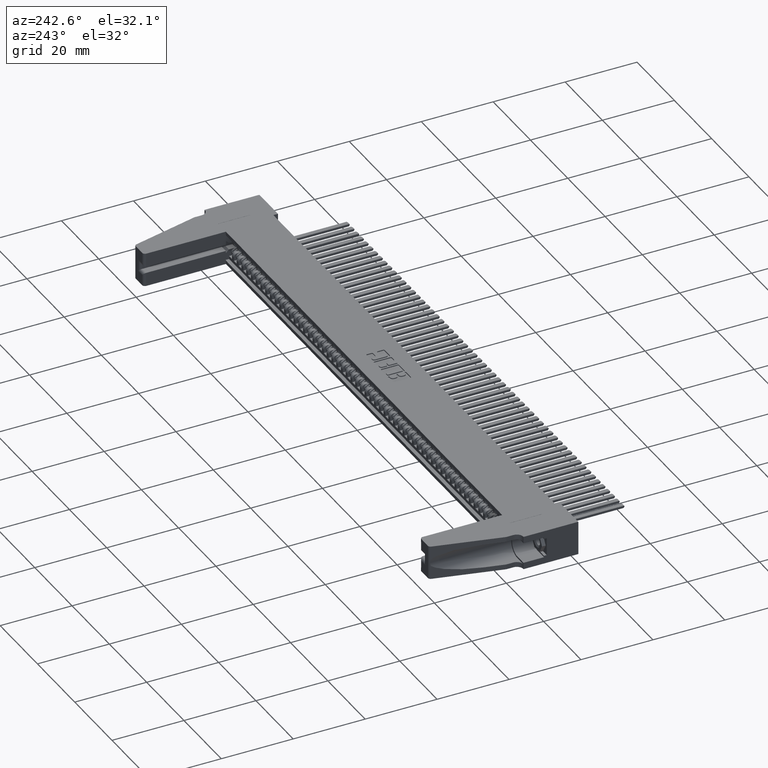
[diagram: clean part render]
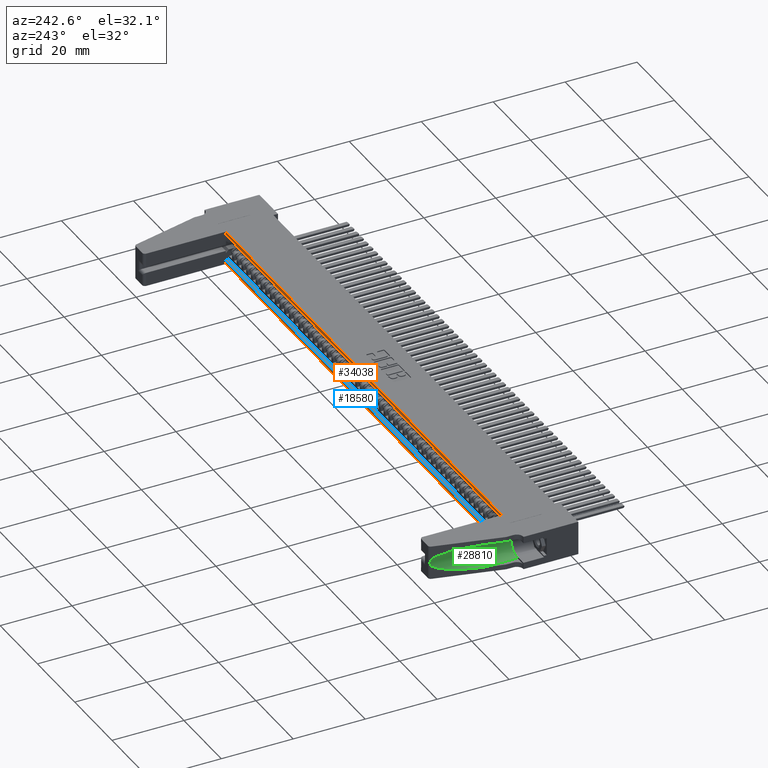
[diagram: same view with three faces highlighted in distinct colors, each labeled with its STEP entity id]
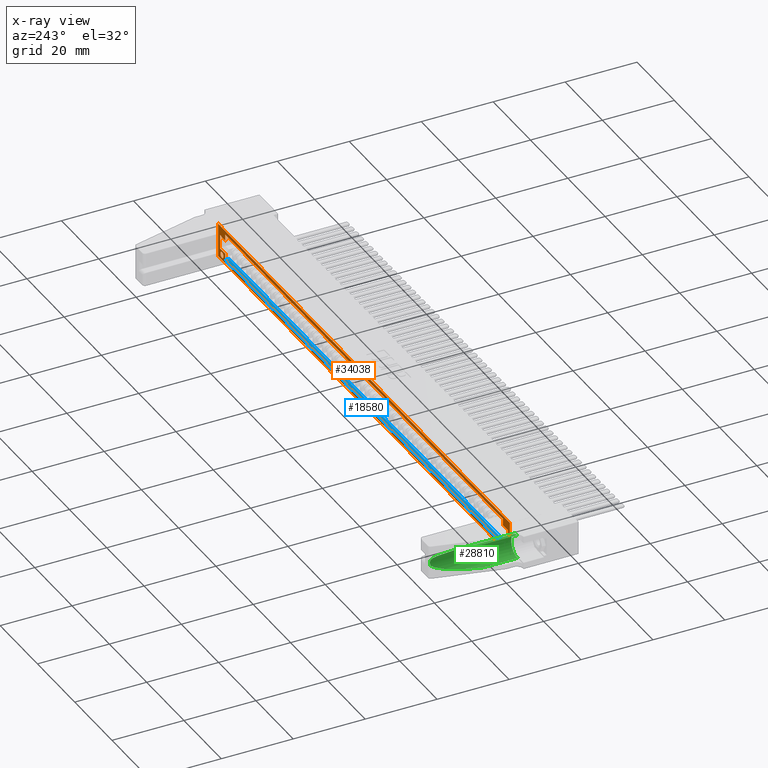
[diagram: x-ray of the same camera — body ghosted, the three highlighted faces saturated]
A machine part, auxiliary view with three faces highlighted in distinct colors.
The next image is the same camera in x-ray (body ghosted, the three faces saturated) — at least one of them is partly hidden behind the body in this view.
Their STEP definitions:

[orange] entity #34038 — the highlighted planar face has unit normal (0, -1, 0).
#142 = DIRECTION ( 'NONE',  ( 0.0000000000000000000, 0.0000000000000000000, -1.000000000000000000 ) ) ;
#204 = CARTESIAN_POINT ( 'NONE',  ( 0.4375000000000010000, 0.5999999999999999800, -0.3310000000000007400 ) ) ;
#339 = EDGE_CURVE ( 'NONE', #10562, #4390, #20150, .T. ) ;
#388 = AXIS2_PLACEMENT_3D ( 'NONE', #8980, #29731, #22627 ) ;
#449 = VECTOR ( 'NONE', #17428, 39.37007874015748100 ) ;
#696 = EDGE_CURVE ( 'NONE', #33969, #15480, #30733, .T. ) ;
#751 = AXIS2_PLACEMENT_3D ( 'NONE', #30401, #16495, #43931 ) ;
#795 = CARTESIAN_POINT ( 'NONE',  ( 0.0000000000000000000, 0.5999999999999999800, -0.2610000000000007300 ) ) ;
#796 = EDGE_CURVE ( 'NONE', #11932, #32181, #27513, .T. ) ;
#820 = VERTEX_POINT ( 'NONE', #34261 ) ;
#943 = DIRECTION ( 'NONE',  ( -1.000000000000000000, -0.0000000000000000000, -1.165464161119566900E-017 ) ) ;
#1179 = CARTESIAN_POINT ( 'NONE',  ( 6.297499999999997700, 0.5999999999999999800, -0.03900000000000066600 ) ) ;
#1569 = LINE ( 'NONE', #23654, #26580 ) ;
#1698 = CARTESIAN_POINT ( 'NONE',  ( 0.4374999999999998900, 0.5999999999999999800, -0.2610000000000007300 ) ) ;
#1959 = FACE_BOUND ( 'NONE', #4902, .T. ) ;
#2023 = CARTESIAN_POINT ( 'NONE',  ( 0.0000000000000000000, 0.5999999999999999800, -0.2610000000000007300 ) ) ;
#2320 = EDGE_CURVE ( 'NONE', #12634, #4390, #14070, .T. ) ;
#2660 = LINE ( 'NONE', #31212, #31943 ) ;
#2753 = LINE ( 'NONE', #26936, #30968 ) ;
#3137 = CARTESIAN_POINT ( 'NONE',  ( 0.3784999999999999500, 0.5999999999999999800, -0.2820000000000000300 ) ) ;
#3429 = DIRECTION ( 'NONE',  ( 1.000000000000000000, 0.0000000000000000000, 1.165464161119566900E-017 ) ) ;
#3480 = VERTEX_POINT ( 'NONE', #36873 ) ;
#3645 = LINE ( 'NONE', #5196, #13775 ) ;
#3853 = CARTESIAN_POINT ( 'NONE',  ( 6.367500000000000600, 0.5999999999999999800, -0.2809999999999996900 ) ) ;
#4003 = CARTESIAN_POINT ( 'NONE',  ( 0.3274999999999991800, 0.5999999999999999800, -0.3700000000000001600 ) ) ;
#4018 = CIRCLE ( 'NONE', #751, 0.03200000000000033400 ) ;
#4115 = FACE_BOUND ( 'NONE', #8216, .T. ) ;
#4135 = CARTESIAN_POINT ( 'NONE',  ( 6.297500000000001200, 0.5999999999999999800, -0.2974999999999998800 ) ) ;
#4390 = VERTEX_POINT ( 'NONE', #31475 ) ;
#4397 = EDGE_CURVE ( 'NONE', #10954, #15480, #37762, .T. ) ;
#4433 = CARTESIAN_POINT ( 'NONE',  ( 0.0000000000000000000, 0.5999999999999999800, 0.0000000000000000000 ) ) ;
#4637 = CARTESIAN_POINT ( 'NONE',  ( 0.2874999999999999800, 0.5999999999999999800, 0.0000000000000000000 ) ) ;
#4805 = LINE ( 'NONE', #42561, #35125 ) ;
#4902 = EDGE_LOOP ( 'NONE', ( #41038, #37666, #33927, #31076 ) ) ;
#5099 = FACE_OUTER_BOUND ( 'NONE', #41823, .T. ) ;
#5196 = CARTESIAN_POINT ( 'NONE',  ( 0.3564999999999999300, 0.5999999999999999800, -0.2820000000000000800 ) ) ;
#5314 = VERTEX_POINT ( 'NONE', #3137 ) ;
#5499 = CARTESIAN_POINT ( 'NONE',  ( 0.3564999999999999800, 0.5999999999999999800, -0.3440000000000000800 ) ) ;
#5963 = CARTESIAN_POINT ( 'NONE',  ( 6.297500000000001200, 0.5999999999999999800, -0.2610000000000007300 ) ) ;
#6494 = CARTESIAN_POINT ( 'NONE',  ( 0.3564999999999999800, 0.5999999999999999800, -0.3440000000000000800 ) ) ;
#6801 = EDGE_CURVE ( 'NONE', #34964, #10954, #8310, .T. ) ;
#6939 = VECTOR ( 'NONE', #28039, 39.37007874015748100 ) ;
#7117 = VECTOR ( 'NONE', #9385, 39.37007874015748100 ) ;
#7132 = ORIENTED_EDGE ( 'NONE', *, *, #19786, .F. ) ;
#7340 = VECTOR ( 'NONE', #26969, 39.37007874015748100 ) ;
#7867 = ORIENTED_EDGE ( 'NONE', *, *, #21352, .F. ) ;
#8216 = EDGE_LOOP ( 'NONE', ( #21910, #21287 ) ) ;
#8310 = LINE ( 'NONE', #4003, #10948 ) ;
#8414 = VECTOR ( 'NONE', #11365, 39.37007874015748100 ) ;
#8791 = EDGE_CURVE ( 'NONE', #37939, #820, #15058, .T. ) ;
#8911 = DIRECTION ( 'NONE',  ( 1.000000000000000000, 0.0000000000000000000, 0.0000000000000000000 ) ) ;
#8980 = CARTESIAN_POINT ( 'NONE',  ( 0.0000000000000000000, 0.5999999999999999800, -0.3700000000000001600 ) ) ;
#9082 = ORIENTED_EDGE ( 'NONE', *, *, #8791, .T. ) ;
#9122 = CARTESIAN_POINT ( 'NONE',  ( 0.4375000000000010000, 0.5999999999999999800, -0.3310000000000007400 ) ) ;
#9385 = DIRECTION ( 'NONE',  ( 0.0000000000000000000, 0.0000000000000000000, 1.000000000000000000 ) ) ;
#10562 = VERTEX_POINT ( 'NONE', #4637 ) ;
#10596 = DIRECTION ( 'NONE',  ( 0.0000000000000000000, 1.000000000000000000, 0.0000000000000000000 ) ) ;
#10948 = VECTOR ( 'NONE', #27615, 39.37007874015748100 ) ;
#10954 = VERTEX_POINT ( 'NONE', #36997 ) ;
#11365 = DIRECTION ( 'NONE',  ( 0.0000000000000000000, 0.0000000000000000000, 1.000000000000000000 ) ) ;
#11400 = CARTESIAN_POINT ( 'NONE',  ( 6.407500000000000600, 0.5999999999999999800, -0.2610000000000007300 ) ) ;
#11932 = VERTEX_POINT ( 'NONE', #31989 ) ;
#12051 = VERTEX_POINT ( 'NONE', #5963 ) ;
#12150 = LINE ( 'NONE', #38202, #38195 ) ;
#12400 = VERTEX_POINT ( 'NONE', #34897 ) ;
#12634 = VERTEX_POINT ( 'NONE', #36648 ) ;
#13579 = DIRECTION ( 'NONE',  ( 0.0000000000000000000, 0.0000000000000000000, 1.000000000000000000 ) ) ;
#13775 = VECTOR ( 'NONE', #28961, 39.37007874015748100 ) ;
#13812 = LINE ( 'NONE', #13989, #449 ) ;
#13989 = CARTESIAN_POINT ( 'NONE',  ( 0.0000000000000000000, 0.5999999999999999800, -0.3700000000000001600 ) ) ;
#14070 = LINE ( 'NONE', #21988, #15149 ) ;
#14479 = EDGE_CURVE ( 'NONE', #12051, #38358, #25243, .T. ) ;
#14484 = AXIS2_PLACEMENT_3D ( 'NONE', #15777, #16221, #23027 ) ;
#14655 = EDGE_CURVE ( 'NONE', #26040, #41393, #4018, .T. ) ;
#14945 = EDGE_CURVE ( 'NONE', #5314, #11932, #20974, .T. ) ;
#15058 = LINE ( 'NONE', #29142, #30985 ) ;
#15110 = CARTESIAN_POINT ( 'NONE',  ( 0.3274999999999991800, 0.5999999999999999800, -0.1089999999999994400 ) ) ;
#15149 = VECTOR ( 'NONE', #26743, 39.37007874015748100 ) ;
#15372 = CIRCLE ( 'NONE', #18703, 0.03200000000000033400 ) ;
#15480 = VERTEX_POINT ( 'NONE', #1698 ) ;
#15777 = CARTESIAN_POINT ( 'NONE',  ( 0.3784999999999999500, 0.5999999999999999800, -0.3130000000000000600 ) ) ;
#16069 = ORIENTED_EDGE ( 'NONE', *, *, #6801, .T. ) ;
#16221 = DIRECTION ( 'NONE',  ( 0.0000000000000000000, 1.000000000000000000, 0.0000000000000000000 ) ) ;
#16429 = ORIENTED_EDGE ( 'NONE', *, *, #4397, .T. ) ;
#16495 = DIRECTION ( 'NONE',  ( 0.0000000000000000000, 1.000000000000000000, 0.0000000000000000000 ) ) ;
#17268 = VERTEX_POINT ( 'NONE', #26236 ) ;
#17428 = DIRECTION ( 'NONE',  ( -1.000000000000000000, -0.0000000000000000000, -2.028097990842066200E-017 ) ) ;
#17697 = CIRCLE ( 'NONE', #22819, 0.03099999999999998900 ) ;
#17984 = ORIENTED_EDGE ( 'NONE', *, *, #41077, .F. ) ;
#18289 = EDGE_CURVE ( 'NONE', #32181, #12400, #17697, .T. ) ;
#18703 = AXIS2_PLACEMENT_3D ( 'NONE', #30347, #10596, #13579 ) ;
#19681 = VECTOR ( 'NONE', #34736, 39.37007874015748100 ) ;
#19786 = EDGE_CURVE ( 'NONE', #3480, #22151, #1569, .T. ) ;
#19988 = EDGE_CURVE ( 'NONE', #12634, #17268, #13812, .T. ) ;
#20150 = LINE ( 'NONE', #4433, #23355 ) ;
#20223 = EDGE_CURVE ( 'NONE', #12400, #5314, #3645, .T. ) ;
#20974 = CIRCLE ( 'NONE', #14484, 0.03100000000000002400 ) ;
#21258 = DIRECTION ( 'NONE',  ( 0.0000000000000000000, 0.0000000000000000000, 1.000000000000000000 ) ) ;
#21287 = ORIENTED_EDGE ( 'NONE', *, *, #44058, .F. ) ;
#21299 = EDGE_LOOP ( 'NONE', ( #41319, #7867, #32098, #22384, #37637, #9082, #25187, #7132, #17984, #40250, #16069, #16429 ) ) ;
#21352 = EDGE_CURVE ( 'NONE', #43606, #33969, #40739, .T. ) ;
#21910 = ORIENTED_EDGE ( 'NONE', *, *, #14655, .F. ) ;
#21988 = CARTESIAN_POINT ( 'NONE',  ( 6.447499999999999800, 0.5999999999999999800, 0.0000000000000000000 ) ) ;
#22151 = VERTEX_POINT ( 'NONE', #1179 ) ;
#22159 = DIRECTION ( 'NONE',  ( 0.0000000000000000000, 0.0000000000000000000, 1.000000000000000000 ) ) ;
#22384 = ORIENTED_EDGE ( 'NONE', *, *, #14479, .T. ) ;
#22627 = DIRECTION ( 'NONE',  ( 0.0000000000000000000, -0.0000000000000000000, -1.000000000000000000 ) ) ;
#22681 = EDGE_CURVE ( 'NONE', #34117, #34964, #2660, .T. ) ;
#22689 = VECTOR ( 'NONE', #943, 39.37007874015748100 ) ;
#22819 = AXIS2_PLACEMENT_3D ( 'NONE', #25842, #36104, #22159 ) ;
#23027 = DIRECTION ( 'NONE',  ( 0.0000000000000000000, 0.0000000000000000000, 1.000000000000000000 ) ) ;
#23355 = VECTOR ( 'NONE', #35055, 39.37007874015748100 ) ;
#23654 = CARTESIAN_POINT ( 'NONE',  ( 0.4375000000000010000, 0.5999999999999999800, -0.03900000000000072900 ) ) ;
#24731 = ORIENTED_EDGE ( 'NONE', *, *, #19988, .T. ) ;
#25187 = ORIENTED_EDGE ( 'NONE', *, *, #32187, .T. ) ;
#25243 = LINE ( 'NONE', #2023, #30631 ) ;
#25842 = CARTESIAN_POINT ( 'NONE',  ( 0.3564999999999999800, 0.5999999999999999800, -0.3130000000000000600 ) ) ;
#26040 = VERTEX_POINT ( 'NONE', #3853 ) ;
#26060 = LINE ( 'NONE', #4135, #19681 ) ;
#26236 = CARTESIAN_POINT ( 'NONE',  ( 0.2874999999999999800, 0.5999999999999999800, -0.3700000000000001600 ) ) ;
#26237 = LINE ( 'NONE', #26268, #7117 ) ;
#26268 = CARTESIAN_POINT ( 'NONE',  ( 6.297500000000001200, 0.5999999999999999800, -0.2974999999999998800 ) ) ;
#26580 = VECTOR ( 'NONE', #3429, 39.37007874015748100 ) ;
#26743 = DIRECTION ( 'NONE',  ( -2.953349182339752700E-015, -0.0000000000000000000, 1.000000000000000000 ) ) ;
#26936 = CARTESIAN_POINT ( 'NONE',  ( 0.2874999999999999800, 0.5999999999999999800, 0.0000000000000000000 ) ) ;
#26969 = DIRECTION ( 'NONE',  ( -1.000000000000000000, -0.0000000000000000000, -0.0000000000000000000 ) ) ;
#27513 = LINE ( 'NONE', #6494, #7340 ) ;
#27615 = DIRECTION ( 'NONE',  ( 0.0000000000000000000, 0.0000000000000000000, -1.000000000000000000 ) ) ;
#27729 = EDGE_CURVE ( 'NONE', #10562, #17268, #2753, .T. ) ;
#28039 = DIRECTION ( 'NONE',  ( 1.000000000000000000, 0.0000000000000000000, 0.0000000000000000000 ) ) ;
#28961 = DIRECTION ( 'NONE',  ( 1.000000000000000000, 0.0000000000000000000, 3.104372720073026700E-015 ) ) ;
#29142 = CARTESIAN_POINT ( 'NONE',  ( 0.0000000000000000000, 0.5999999999999999800, -0.1089999999999994400 ) ) ;
#29289 = PLANE ( 'NONE',  #388 ) ;
#29731 = DIRECTION ( 'NONE',  ( 0.0000000000000000000, -1.000000000000000000, 0.0000000000000000000 ) ) ;
#30347 = CARTESIAN_POINT ( 'NONE',  ( 6.367500000000000600, 0.5999999999999999800, -0.3130000000000000600 ) ) ;
#30401 = CARTESIAN_POINT ( 'NONE',  ( 6.367500000000000600, 0.5999999999999999800, -0.3130000000000000600 ) ) ;
#30631 = VECTOR ( 'NONE', #8911, 39.37007874015748100 ) ;
#30733 = LINE ( 'NONE', #38993, #8414 ) ;
#30968 = VECTOR ( 'NONE', #142, 39.37007874015748100 ) ;
#30985 = VECTOR ( 'NONE', #32584, 39.37007874015748100 ) ;
#31062 = DIRECTION ( 'NONE',  ( -1.000000000000000000, 0.0000000000000000000, 0.0000000000000000000 ) ) ;
#31076 = ORIENTED_EDGE ( 'NONE', *, *, #14945, .F. ) ;
#31212 = CARTESIAN_POINT ( 'NONE',  ( 0.0000000000000000000, 0.5999999999999999800, -0.1089999999999994400 ) ) ;
#31294 = CARTESIAN_POINT ( 'NONE',  ( 6.297499999999997700, 0.5999999999999999800, -0.3310000000000006300 ) ) ;
#31475 = CARTESIAN_POINT ( 'NONE',  ( 6.447499999999999800, 0.5999999999999999800, 0.0000000000000000000 ) ) ;
#31560 = ORIENTED_EDGE ( 'NONE', *, *, #27729, .F. ) ;
#31943 = VECTOR ( 'NONE', #31062, 39.37007874015748100 ) ;
#31989 = CARTESIAN_POINT ( 'NONE',  ( 0.3784999999999999500, 0.5999999999999999800, -0.3440000000000000800 ) ) ;
#32098 = ORIENTED_EDGE ( 'NONE', *, *, #36315, .T. ) ;
#32181 = VERTEX_POINT ( 'NONE', #5499 ) ;
#32187 = EDGE_CURVE ( 'NONE', #820, #22151, #26237, .T. ) ;
#32584 = DIRECTION ( 'NONE',  ( -1.000000000000000000, 0.0000000000000000000, 0.0000000000000000000 ) ) ;
#33423 = CARTESIAN_POINT ( 'NONE',  ( 6.407500000000000600, 0.5999999999999999800, -0.1089999999999994400 ) ) ;
#33927 = ORIENTED_EDGE ( 'NONE', *, *, #796, .F. ) ;
#33969 = VERTEX_POINT ( 'NONE', #9122 ) ;
#34038 = ADVANCED_FACE ( 'NONE', ( #4115, #1959, #5099, #40180 ), #29289, .F. ) ;
#34117 = VERTEX_POINT ( 'NONE', #43853 ) ;
#34261 = CARTESIAN_POINT ( 'NONE',  ( 6.297500000000001200, 0.5999999999999999800, -0.1089999999999994400 ) ) ;
#34736 = DIRECTION ( 'NONE',  ( 0.0000000000000000000, 0.0000000000000000000, 1.000000000000000000 ) ) ;
#34897 = CARTESIAN_POINT ( 'NONE',  ( 0.3564999999999999300, 0.5999999999999999800, -0.2820000000000000800 ) ) ;
#34964 = VERTEX_POINT ( 'NONE', #15110 ) ;
#35055 = DIRECTION ( 'NONE',  ( 1.000000000000000000, 0.0000000000000000000, 0.0000000000000000000 ) ) ;
#35125 = VECTOR ( 'NONE', #35440, 39.37007874015748100 ) ;
#35440 = DIRECTION ( 'NONE',  ( 0.0000000000000000000, 0.0000000000000000000, 1.000000000000000000 ) ) ;
#36104 = DIRECTION ( 'NONE',  ( 0.0000000000000000000, 1.000000000000000000, 0.0000000000000000000 ) ) ;
#36315 = EDGE_CURVE ( 'NONE', #43606, #12051, #26060, .T. ) ;
#36648 = CARTESIAN_POINT ( 'NONE',  ( 6.447500000000000700, 0.5999999999999999800, -0.3699999999999990000 ) ) ;
#36873 = CARTESIAN_POINT ( 'NONE',  ( 0.4375000000000010000, 0.5999999999999999800, -0.03900000000000072900 ) ) ;
#36997 = CARTESIAN_POINT ( 'NONE',  ( 0.3274999999999991800, 0.5999999999999999800, -0.2610000000000007300 ) ) ;
#37493 = EDGE_CURVE ( 'NONE', #38358, #37939, #12150, .T. ) ;
#37637 = ORIENTED_EDGE ( 'NONE', *, *, #37493, .T. ) ;
#37666 = ORIENTED_EDGE ( 'NONE', *, *, #18289, .F. ) ;
#37762 = LINE ( 'NONE', #795, #6939 ) ;
#37939 = VERTEX_POINT ( 'NONE', #33423 ) ;
#38195 = VECTOR ( 'NONE', #21258, 39.37007874015748100 ) ;
#38202 = CARTESIAN_POINT ( 'NONE',  ( 6.407500000000000600, 0.5999999999999999800, -0.3700000000000001600 ) ) ;
#38358 = VERTEX_POINT ( 'NONE', #11400 ) ;
#38993 = CARTESIAN_POINT ( 'NONE',  ( 0.4374999999999998900, 0.5999999999999999800, -0.2974999999999999900 ) ) ;
#40180 = FACE_BOUND ( 'NONE', #21299, .T. ) ;
#40250 = ORIENTED_EDGE ( 'NONE', *, *, #22681, .T. ) ;
#40739 = LINE ( 'NONE', #204, #22689 ) ;
#40926 = ORIENTED_EDGE ( 'NONE', *, *, #339, .T. ) ;
#41038 = ORIENTED_EDGE ( 'NONE', *, *, #20223, .F. ) ;
#41077 = EDGE_CURVE ( 'NONE', #34117, #3480, #4805, .T. ) ;
#41319 = ORIENTED_EDGE ( 'NONE', *, *, #696, .F. ) ;
#41393 = VERTEX_POINT ( 'NONE', #43596 ) ;
#41823 = EDGE_LOOP ( 'NONE', ( #40926, #42021, #24731, #31560 ) ) ;
#42021 = ORIENTED_EDGE ( 'NONE', *, *, #2320, .F. ) ;
#42561 = CARTESIAN_POINT ( 'NONE',  ( 0.4374999999999998900, 0.5999999999999999800, -0.2974999999999999900 ) ) ;
#43596 = CARTESIAN_POINT ( 'NONE',  ( 6.367500000000000600, 0.5999999999999999800, -0.3450000000000003600 ) ) ;
#43606 = VERTEX_POINT ( 'NONE', #31294 ) ;
#43853 = CARTESIAN_POINT ( 'NONE',  ( 0.4374999999999998900, 0.5999999999999999800, -0.1089999999999994400 ) ) ;
#43931 = DIRECTION ( 'NONE',  ( 0.0000000000000000000, 0.0000000000000000000, 1.000000000000000000 ) ) ;
#44058 = EDGE_CURVE ( 'NONE', #41393, #26040, #15372, .T. ) ;

[blue] entity #18580 — the highlighted planar face has unit normal (0, 0, -1).
#204 = CARTESIAN_POINT ( 'NONE',  ( 0.4375000000000010000, 0.5999999999999999800, -0.3310000000000007400 ) ) ;
#516 = ORIENTED_EDGE ( 'NONE', *, *, #27260, .F. ) ;
#943 = DIRECTION ( 'NONE',  ( -1.000000000000000000, -0.0000000000000000000, -1.165464161119566900E-017 ) ) ;
#4526 = VERTEX_POINT ( 'NONE', #35756 ) ;
#6344 = EDGE_CURVE ( 'NONE', #4526, #13616, #41274, .T. ) ;
#6689 = DIRECTION ( 'NONE',  ( -1.000000000000000000, 0.0000000000000000000, -1.165464161119566900E-017 ) ) ;
#9122 = CARTESIAN_POINT ( 'NONE',  ( 0.4375000000000010000, 0.5999999999999999800, -0.3310000000000007400 ) ) ;
#10396 = CARTESIAN_POINT ( 'NONE',  ( 0.4375000000000010000, -5.309270574977769100, -0.3310000000000007400 ) ) ;
#12356 = CARTESIAN_POINT ( 'NONE',  ( 0.4375000000000010000, 0.5579999999999999400, -0.3310000000000007400 ) ) ;
#13555 = EDGE_LOOP ( 'NONE', ( #41731, #33235, #516, #21975 ) ) ;
#13616 = VERTEX_POINT ( 'NONE', #17604 ) ;
#14447 = DIRECTION ( 'NONE',  ( -0.0000000000000000000, 1.000000000000000000, -0.0000000000000000000 ) ) ;
#16343 = VECTOR ( 'NONE', #18753, 39.37007874015748100 ) ;
#16710 = CARTESIAN_POINT ( 'NONE',  ( 6.297499999999997700, -5.309270574977769100, -0.3310000000000006300 ) ) ;
#17148 = FACE_OUTER_BOUND ( 'NONE', #13555, .T. ) ;
#17224 = LINE ( 'NONE', #37854, #19308 ) ;
#17604 = CARTESIAN_POINT ( 'NONE',  ( 0.4375000000000010000, 0.5579999999999999400, -0.3310000000000007400 ) ) ;
#17928 = EDGE_CURVE ( 'NONE', #4526, #43606, #37938, .T. ) ;
#18580 = ADVANCED_FACE ( 'NONE', ( #17148 ), #36987, .F. ) ;
#18753 = DIRECTION ( 'NONE',  ( -1.000000000000000000, 2.180733513864450400E-032, -1.165464161119566900E-017 ) ) ;
#19308 = VECTOR ( 'NONE', #41250, 39.37007874015748100 ) ;
#21352 = EDGE_CURVE ( 'NONE', #43606, #33969, #40739, .T. ) ;
#21975 = ORIENTED_EDGE ( 'NONE', *, *, #6344, .F. ) ;
#22689 = VECTOR ( 'NONE', #943, 39.37007874015748100 ) ;
#27260 = EDGE_CURVE ( 'NONE', #13616, #33969, #17224, .T. ) ;
#27810 = VECTOR ( 'NONE', #14447, 39.37007874015748100 ) ;
#30885 = DIRECTION ( 'NONE',  ( 1.165464161119566900E-017, 0.0000000000000000000, -1.000000000000000000 ) ) ;
#31294 = CARTESIAN_POINT ( 'NONE',  ( 6.297499999999997700, 0.5999999999999999800, -0.3310000000000006300 ) ) ;
#33235 = ORIENTED_EDGE ( 'NONE', *, *, #21352, .T. ) ;
#33969 = VERTEX_POINT ( 'NONE', #9122 ) ;
#35756 = CARTESIAN_POINT ( 'NONE',  ( 6.297499999999997700, 0.5579999999999999400, -0.3310000000000006300 ) ) ;
#36467 = AXIS2_PLACEMENT_3D ( 'NONE', #10396, #30885, #6689 ) ;
#36987 = PLANE ( 'NONE',  #36467 ) ;
#37854 = CARTESIAN_POINT ( 'NONE',  ( 0.4375000000000010000, -5.309270574977769100, -0.3310000000000007400 ) ) ;
#37938 = LINE ( 'NONE', #16710, #27810 ) ;
#40739 = LINE ( 'NONE', #204, #22689 ) ;
#41250 = DIRECTION ( 'NONE',  ( -0.0000000000000000000, 1.000000000000000000, -0.0000000000000000000 ) ) ;
#41274 = LINE ( 'NONE', #12356, #16343 ) ;
#41731 = ORIENTED_EDGE ( 'NONE', *, *, #17928, .T. ) ;
#43606 = VERTEX_POINT ( 'NONE', #31294 ) ;

[green] entity #28810 — the highlighted cylindrical surface (edge-blend (fillet) strip) has radius 3.3083 mm, axis along (-0, -1, -0).
#506 = ORIENTED_EDGE ( 'NONE', *, *, #27250, .F. ) ;
#871 = CARTESIAN_POINT ( 'NONE',  ( 0.2601832251689556500, 1.238348025830904500, 0.1989473821119740700 ) ) ;
#2962 = VECTOR ( 'NONE', #34662, 39.37007874015748100 ) ;
#3964 = CARTESIAN_POINT ( 'NONE',  ( 0.1304999999999996200, 0.3499999999999999800, 0.1849999999999999100 ) ) ;
#4643 = CARTESIAN_POINT ( 'NONE',  ( 0.1305000000000001400, 1.618579452085978400, 0.05475000000000000700 ) ) ;
#5209 = CARTESIAN_POINT ( 'NONE',  ( 0.1305000000000001400, 0.7229729729729719200, 0.3152499999999999200 ) ) ;
#6159 = CARTESIAN_POINT ( 'NONE',  ( 0.2548722146876841200, 1.227184654139258100, 0.1463138950825924900 ) ) ;
#6753 = CARTESIAN_POINT ( 'NONE',  ( 0.1305000000000001400, 0.3499999999999999800, 0.05475000000000000700 ) ) ;
#7055 = ORIENTED_EDGE ( 'NONE', *, *, #25528, .T. ) ;
#7083 = AXIS2_PLACEMENT_3D ( 'NONE', #3964, #37403, #37707 ) ;
#7474 = CARTESIAN_POINT ( 'NONE',  ( 0.2601746583527694300, 1.238333326094013000, 0.1710187248053554000 ) ) ;
#7790 = CARTESIAN_POINT ( 'NONE',  ( 0.1896596859580425300, 0.9628095376677405800, 0.05474999999999999300 ) ) ;
#8021 = CARTESIAN_POINT ( 'NONE',  ( 0.2548722146876835600, 1.227184654139258400, 0.2236861049174074000 ) ) ;
#8688 = ORIENTED_EDGE ( 'NONE', *, *, #32174, .F. ) ;
#8937 = DIRECTION ( 'NONE',  ( -5.612000012723082900E-032, -1.000000000000000000, -5.916456789157588500E-031 ) ) ;
#9759 = VECTOR ( 'NONE', #8937, 39.37007874015748100 ) ;
#10749 = CARTESIAN_POINT ( 'NONE',  ( 0.2578854245038478300, 1.234861984818298900, 0.1576467210914303300 ) ) ;
#10897 = CARTESIAN_POINT ( 'NONE',  ( 0.2607492713587629700, 1.238958935659852500, 0.1920295986915269100 ) ) ;
#11816 = EDGE_LOOP ( 'NONE', ( #33201, #22443, #18613, #7055, #506, #8688 ) ) ;
#14166 = CARTESIAN_POINT ( 'NONE',  ( 0.2585429365154178200, 1.235904140357740900, 0.2091219894081829400 ) ) ;
#14315 = CARTESIAN_POINT ( 'NONE',  ( 0.2585611947877646300, 1.235932299014800700, 0.1609817666496035400 ) ) ;
#14868 = CARTESIAN_POINT ( 'NONE',  ( 0.1305000000000001400, 0.7229729729729719200, 0.3152499999999999200 ) ) ;
#16045 = DIRECTION ( 'NONE',  ( -5.612000012723082900E-032, -1.000000000000000000, -5.916456789157588500E-031 ) ) ;
#16179 = LINE ( 'NONE', #43091, #9759 ) ;
#16320 = EDGE_CURVE ( 'NONE', #26771, #25203, #20971, .T. ) ;
#17882 = CARTESIAN_POINT ( 'NONE',  ( 0.2563928845766985100, 1.231861671013515100, 0.1514406517340757000 ) ) ;
#18024 = CARTESIAN_POINT ( 'NONE',  ( 0.2563858078316529300, 1.231844894428759900, 0.2185847291077728000 ) ) ;
#18263 = CARTESIAN_POINT ( 'NONE',  ( 0.1896596859580425800, 0.9628095376677405800, 0.3152500000000000900 ) ) ;
#18613 = ORIENTED_EDGE ( 'NONE', *, *, #22116, .T. ) ;
#19077 =( BOUNDED_CURVE ( )  B_SPLINE_CURVE ( 3, ( #14868, #18263, #28654, #24962 ),
 .UNSPECIFIED., .F., .F. ) 
 B_SPLINE_CURVE_WITH_KNOTS ( ( 4, 4 ),
 ( 1.570796326794896800, 2.840028391437016800 ),
 .UNSPECIFIED. ) 
 CURVE ( )  GEOMETRIC_REPRESENTATION_ITEM ( )  RATIONAL_B_SPLINE_CURVE ( ( 1.000000000000000000, 0.8701995987432793500, 0.8701995987432793500, 1.000000000000000000 ) ) 
 REPRESENTATION_ITEM ( '' )  );
#20971 = B_SPLINE_CURVE_WITH_KNOTS ( 'NONE', 3,
 ( #38226, #24255, #18024, #24701, #14166, #871, #10897, #24841, #7474, #14315, #10749, #17882, #38075, #41758 ),
 .UNSPECIFIED., .F., .F.,
 ( 4, 2, 2, 2, 2, 2, 4 ),
 ( 1.734723475976807100E-018, 0.0002671599166263915900, 0.0005343198332527814500, 0.001068639666505565300, 0.001602959499758349200, 0.001870119416384741300, 0.002137279333011132300 ),
 .UNSPECIFIED. ) ;
#20987 =( BOUNDED_CURVE ( )  B_SPLINE_CURVE ( 3, ( #31414, #28560, #7790, #41635 ),
 .UNSPECIFIED., .F., .F. ) 
 B_SPLINE_CURVE_WITH_KNOTS ( ( 4, 4 ),
 ( 3.443156915742570300, 4.712388980384689700 ),
 .UNSPECIFIED. ) 
 CURVE ( )  GEOMETRIC_REPRESENTATION_ITEM ( )  RATIONAL_B_SPLINE_CURVE ( ( 1.000000000000000000, 0.8701995987432795700, 0.8701995987432795700, 1.000000000000000000 ) ) 
 REPRESENTATION_ITEM ( '' )  );
#22116 = EDGE_CURVE ( 'NONE', #25203, #37002, #20987, .T. ) ;
#22443 = ORIENTED_EDGE ( 'NONE', *, *, #16320, .T. ) ;
#24255 = CARTESIAN_POINT ( 'NONE',  ( 0.2555509601150310900, 1.229936324790667200, 0.2215040017517213600 ) ) ;
#24296 = EDGE_CURVE ( 'NONE', #30161, #26771, #19077, .T. ) ;
#24701 = CARTESIAN_POINT ( 'NONE',  ( 0.2578744793662743300, 1.234842503019048600, 0.2124027854212100500 ) ) ;
#24790 = AXIS2_PLACEMENT_3D ( 'NONE', #43066, #16045, #25658 ) ;
#24841 = CARTESIAN_POINT ( 'NONE',  ( 0.2607507272391346200, 1.238960720910290400, 0.1779974289772158200 ) ) ;
#24962 = CARTESIAN_POINT ( 'NONE',  ( 0.2548722146876835600, 1.227184654139258400, 0.2236861049174074000 ) ) ;
#25160 = CARTESIAN_POINT ( 'NONE',  ( 0.1305000000000001400, 0.7229729729729719200, 0.05475000000000000700 ) ) ;
#25203 = VERTEX_POINT ( 'NONE', #6159 ) ;
#25528 = EDGE_CURVE ( 'NONE', #37002, #41459, #41268, .T. ) ;
#25658 = DIRECTION ( 'NONE',  ( 0.0000000000000000000, 0.0000000000000000000, -1.000000000000000000 ) ) ;
#26771 = VERTEX_POINT ( 'NONE', #8021 ) ;
#27250 = EDGE_CURVE ( 'NONE', #35661, #41459, #29413, .T. ) ;
#28560 = CARTESIAN_POINT ( 'NONE',  ( 0.2373009454527221500, 1.155949778862387600, 0.08982390534877546200 ) ) ;
#28654 = CARTESIAN_POINT ( 'NONE',  ( 0.2373009454527222100, 1.155949778862387800, 0.2801760946512244500 ) ) ;
#28810 = ADVANCED_FACE ( 'NONE', ( #32392 ), #31828, .F. ) ;
#29413 = CIRCLE ( 'NONE', #7083, 0.1302499999999999500 ) ;
#30161 = VERTEX_POINT ( 'NONE', #5209 ) ;
#31414 = CARTESIAN_POINT ( 'NONE',  ( 0.2548722146876841200, 1.227184654139258100, 0.1463138950825924900 ) ) ;
#31828 = CYLINDRICAL_SURFACE ( 'NONE', #24790, 0.1302500000000000000 ) ;
#32174 = EDGE_CURVE ( 'NONE', #30161, #35661, #16179, .T. ) ;
#32295 = CARTESIAN_POINT ( 'NONE',  ( 0.1305000000000001400, 0.3499999999999999800, 0.3152500000000000300 ) ) ;
#32392 = FACE_OUTER_BOUND ( 'NONE', #11816, .T. ) ;
#33201 = ORIENTED_EDGE ( 'NONE', *, *, #24296, .T. ) ;
#34662 = DIRECTION ( 'NONE',  ( -5.612000012723082900E-032, -1.000000000000000000, -5.916456789157588500E-031 ) ) ;
#35661 = VERTEX_POINT ( 'NONE', #32295 ) ;
#37002 = VERTEX_POINT ( 'NONE', #25160 ) ;
#37403 = DIRECTION ( 'NONE',  ( 5.612000012723082900E-032, 1.000000000000000000, 5.916456789157588500E-031 ) ) ;
#37707 = DIRECTION ( 'NONE',  ( 0.0000000000000000000, 0.0000000000000000000, 1.000000000000000000 ) ) ;
#38075 = CARTESIAN_POINT ( 'NONE',  ( 0.2555500627181148700, 1.229932686695058200, 0.1484931132009924800 ) ) ;
#38226 = CARTESIAN_POINT ( 'NONE',  ( 0.2548722146876835600, 1.227184654139258400, 0.2236861049174074000 ) ) ;
#41268 = LINE ( 'NONE', #4643, #2962 ) ;
#41459 = VERTEX_POINT ( 'NONE', #6753 ) ;
#41635 = CARTESIAN_POINT ( 'NONE',  ( 0.1305000000000001400, 0.7229729729729719200, 0.05475000000000000700 ) ) ;
#41758 = CARTESIAN_POINT ( 'NONE',  ( 0.2548722146876841200, 1.227184654139258100, 0.1463138950825924900 ) ) ;
#43066 = CARTESIAN_POINT ( 'NONE',  ( 0.1304999999999996200, 1.618579452085978400, 0.1850000000000000000 ) ) ;
#43091 = CARTESIAN_POINT ( 'NONE',  ( 0.1305000000000001400, 1.618579452085978400, 0.3152499999999999200 ) ) ;